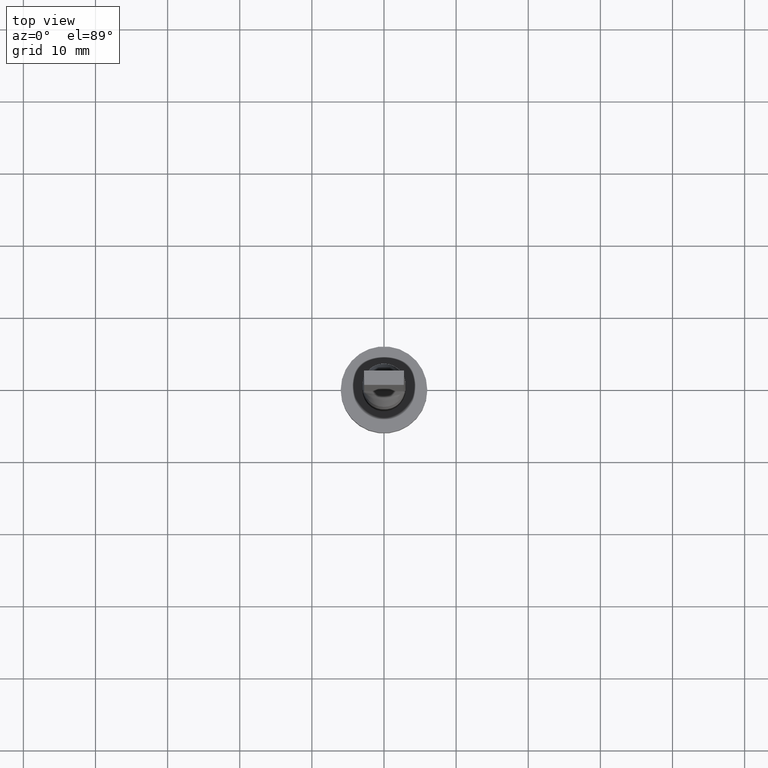
[diagram: clean part render]
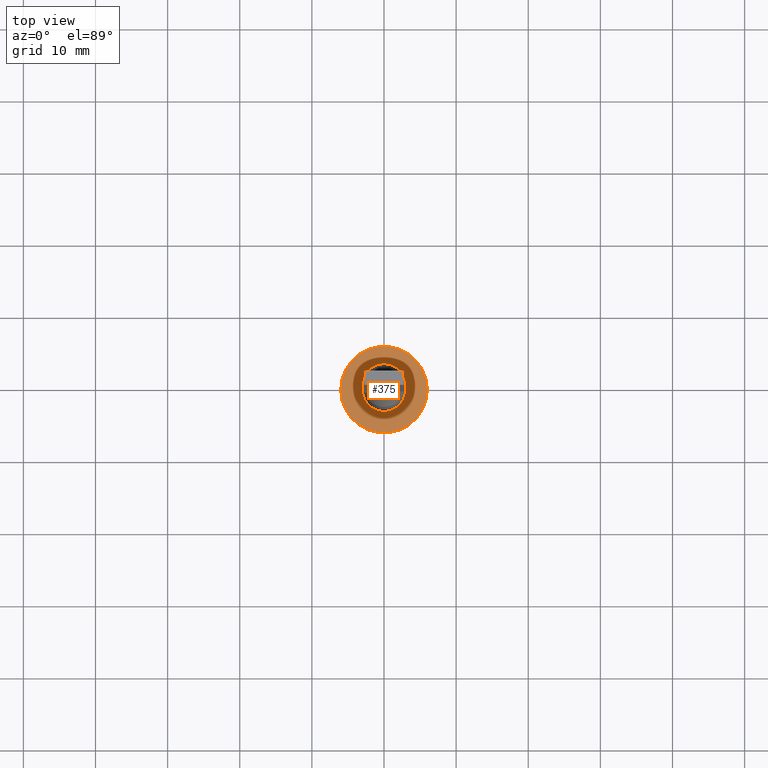
[diagram: same view with one face highlighted and labeled with its STEP entity id]
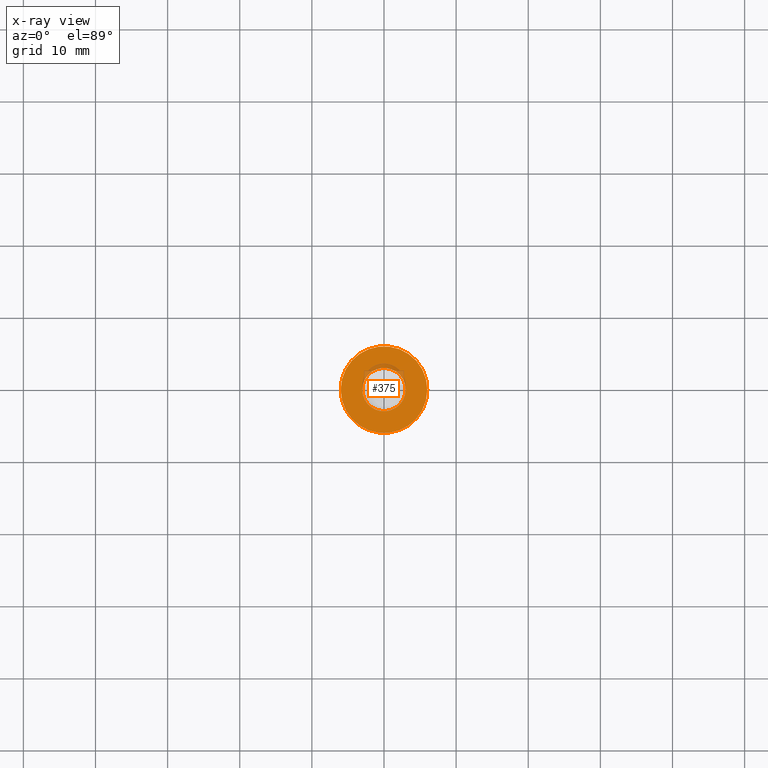
[diagram: x-ray of the same camera — body ghosted, the highlighted face saturated]
A machine part, top view. The second image highlights one B-rep face of the part: STEP entity #375.
The next image is the same camera in x-ray: the body ghosted, the highlighted face saturated — about 5% of this face is hidden behind the body in this view.
In plain terms, the highlighted planar face has unit normal (0, 0, 1).
Its self-contained STEP definition (entity closure, byte-faithful):
#19 = CIRCLE ( 'NONE', #354, 3.000000000000000444 ) ;
#30 = EDGE_CURVE ( 'NONE', #501, #326, #19, .T. ) ;
#34 = DIRECTION ( 'NONE',  ( 0.000000000000000000, 0.000000000000000000, 1.000000000000000000 ) ) ;
#37 = DIRECTION ( 'NONE',  ( 0.000000000000000000, 0.000000000000000000, 1.000000000000000000 ) ) ;
#42 = DIRECTION ( 'NONE',  ( 0.000000000000000000, 0.000000000000000000, 1.000000000000000000 ) ) ;
#44 = FACE_OUTER_BOUND ( 'NONE', #246, .T. ) ;
#49 = EDGE_LOOP ( 'NONE', ( #202, #411 ) ) ;
#62 = CIRCLE ( 'NONE', #408, 3.000000000000000444 ) ;
#118 = AXIS2_PLACEMENT_3D ( 'NONE', #282, #457, #245 ) ;
#172 = CARTESIAN_POINT ( 'NONE',  ( 0.000000000000000000, 0.000000000000000000, 5.000000000000000000 ) ) ;
#176 = EDGE_CURVE ( 'NONE', #326, #501, #62, .T. ) ;
#201 = CARTESIAN_POINT ( 'NONE',  ( 3.000000000000000444, 3.673940397442060361E-16, 5.000000000000000000 ) ) ;
#202 = ORIENTED_EDGE ( 'NONE', *, *, #176, .F. ) ;
#228 = CARTESIAN_POINT ( 'NONE',  ( 0.000000000000000000, 0.000000000000000000, 5.000000000000000000 ) ) ;
#245 = DIRECTION ( 'NONE',  ( 1.000000000000000000, 0.000000000000000000, 0.000000000000000000 ) ) ;
#246 = EDGE_LOOP ( 'NONE', ( #420, #350 ) ) ;
#247 = CARTESIAN_POINT ( 'NONE',  ( -3.000000000000000444, 0.000000000000000000, 5.000000000000000000 ) ) ;
#270 = AXIS2_PLACEMENT_3D ( 'NONE', #393, #42, #343 ) ;
#282 = CARTESIAN_POINT ( 'NONE',  ( 0.000000000000000000, 0.000000000000000000, 5.000000000000000000 ) ) ;
#293 = CARTESIAN_POINT ( 'NONE',  ( 0.000000000000000000, 0.000000000000000000, 5.000000000000000000 ) ) ;
#302 = PLANE ( 'NONE',  #368 ) ;
#318 = EDGE_CURVE ( 'NONE', #433, #404, #357, .T. ) ;
#326 = VERTEX_POINT ( 'NONE', #247 ) ;
#343 = DIRECTION ( 'NONE',  ( 1.000000000000000000, 0.000000000000000000, 0.000000000000000000 ) ) ;
#350 = ORIENTED_EDGE ( 'NONE', *, *, #318, .T. ) ;
#354 = AXIS2_PLACEMENT_3D ( 'NONE', #228, #380, #391 ) ;
#357 = CIRCLE ( 'NONE', #118, 6.000000000000000888 ) ;
#368 = AXIS2_PLACEMENT_3D ( 'NONE', #172, #37, #525 ) ;
#375 = ADVANCED_FACE ( 'NONE', ( #385, #44 ), #302, .T. ) ;
#380 = DIRECTION ( 'NONE',  ( 0.000000000000000000, 0.000000000000000000, 1.000000000000000000 ) ) ;
#385 = FACE_BOUND ( 'NONE', #49, .T. ) ;
#391 = DIRECTION ( 'NONE',  ( 1.000000000000000000, 0.000000000000000000, 0.000000000000000000 ) ) ;
#393 = CARTESIAN_POINT ( 'NONE',  ( 0.000000000000000000, 0.000000000000000000, 5.000000000000000000 ) ) ;
#399 = EDGE_CURVE ( 'NONE', #404, #433, #416, .T. ) ;
#404 = VERTEX_POINT ( 'NONE', #480 ) ;
#408 = AXIS2_PLACEMENT_3D ( 'NONE', #293, #34, #466 ) ;
#411 = ORIENTED_EDGE ( 'NONE', *, *, #30, .F. ) ;
#416 = CIRCLE ( 'NONE', #270, 6.000000000000000888 ) ;
#420 = ORIENTED_EDGE ( 'NONE', *, *, #399, .T. ) ;
#433 = VERTEX_POINT ( 'NONE', #521 ) ;
#457 = DIRECTION ( 'NONE',  ( 0.000000000000000000, 0.000000000000000000, 1.000000000000000000 ) ) ;
#466 = DIRECTION ( 'NONE',  ( 1.000000000000000000, 0.000000000000000000, 0.000000000000000000 ) ) ;
#480 = CARTESIAN_POINT ( 'NONE',  ( -6.000000000000000888, 0.000000000000000000, 5.000000000000000000 ) ) ;
#501 = VERTEX_POINT ( 'NONE', #201 ) ;
#521 = CARTESIAN_POINT ( 'NONE',  ( 6.000000000000000888, 7.347880794884120722E-16, 5.000000000000000000 ) ) ;
#525 = DIRECTION ( 'NONE',  ( 1.000000000000000000, 0.000000000000000000, -0.000000000000000000 ) ) ;